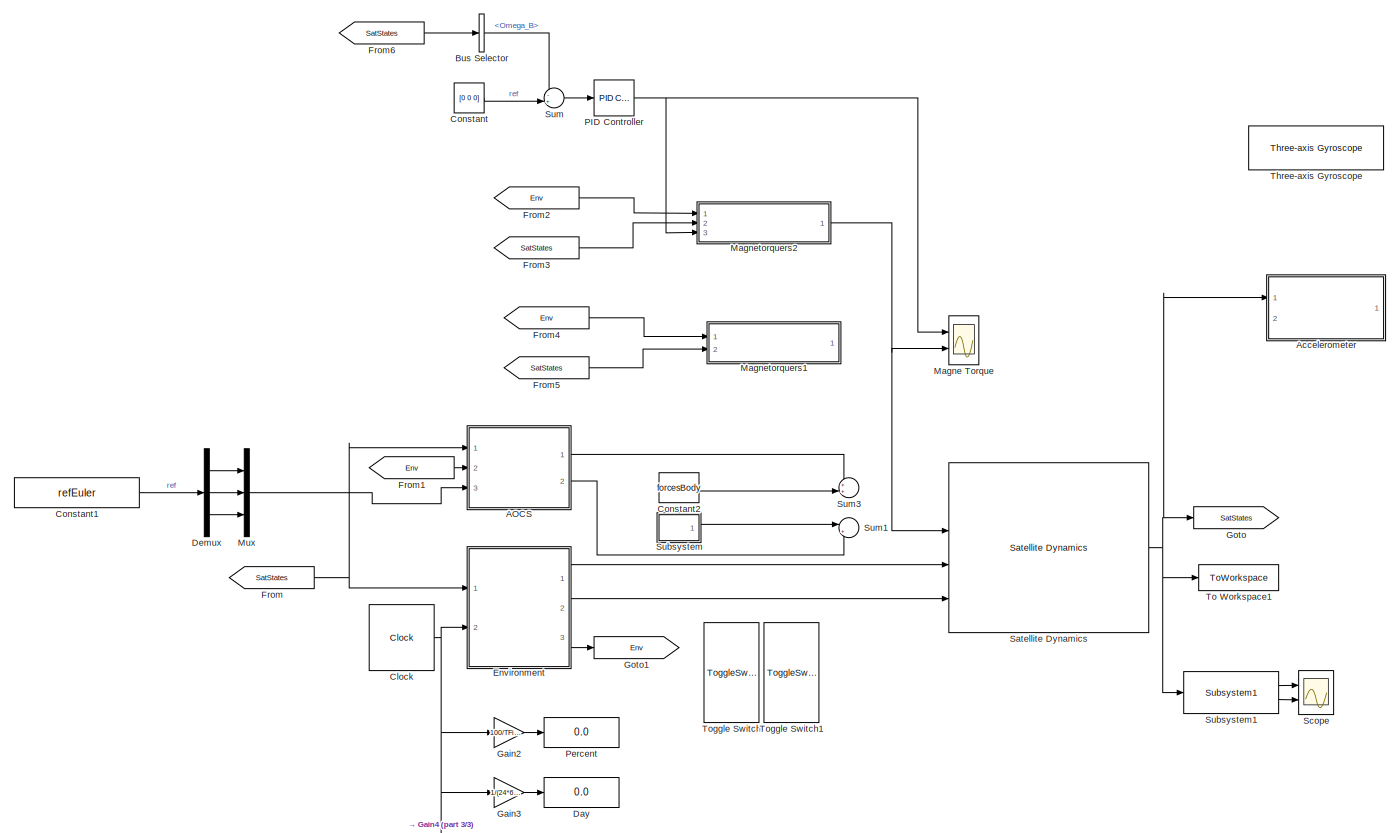
[diagram: root canvas - part 1/3, most of the canvas]
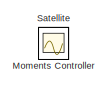
[diagram: root canvas - part 2/3, middle left region]
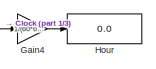
[diagram: root canvas - part 3/3, bottom center region]
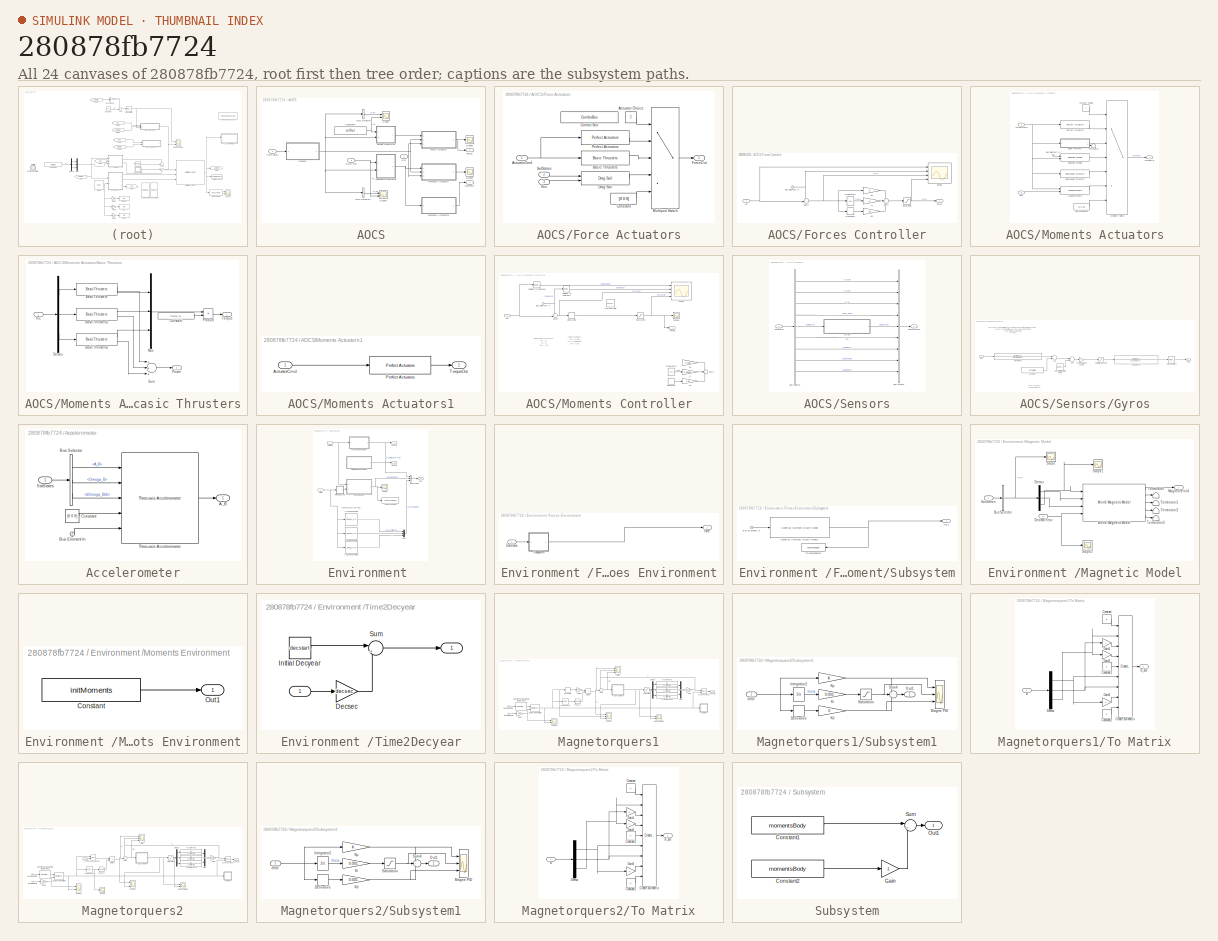
[diagram: thumbnail index - all 24 canvases of the model, root first then tree order]
MODEL slx_280878fb7724
KIND model
CONFIG AbsTol = auto
CONFIG EnableMultiTasking = off
CONFIG FixedStep = 0.1
CONFIG MaxStep = 1
CONFIG MinStep = dT
CONFIG RelTol = 1e-3
CONFIG SampleTimeConstraint = Unconstrained
CONFIG Solver = ode14x
CONFIG SolverName = ode14x
CONFIG StartTime = 0.0
CONFIG StopTime = 2000
WORKSPACE source: mxarray member
WORKSPACE actuators = 0
BLOCK [SubSystem] AOCS
  Commented = on
  Ports = [3, 2]
  RequestExecContextInheritance = off
BLOCK [BusSelector] AOCS/Bus Selector
  Commented = on
  OutputAsBus = off
  OutputSignals = V_B
  Ports = [1, 1]
BLOCK [BusSelector] AOCS/Bus Selector1
  OutputAsBus = off
  OutputSignals = V_B
  Ports = [1, 1]
BLOCK [Constant] AOCS/Constant4
  Commented = on
  Value = refVel
BLOCK [Inport] AOCS/Env
  IconDisplay = Port number
  Port = 2
BLOCK [Inport] AOCS/Euler Ref
  IconDisplay = Port number
  Port = 3
BLOCK [SubSystem] AOCS/Force Actuators
  Commented = on
  Ports = [3, 1]
  RequestExecContextInheritance = off
BLOCK [Constant] AOCS/Force Actuators/Actuator Choice
  Value = 2
BLOCK [Inport] AOCS/Force Actuators/ActuatorCmd
  IconDisplay = Port number
BLOCK [Reference] AOCS/Force Actuators/Basic Thrusters  REF=scars_library/Actuators/Basic Thrusters  (lib defined in slx_0992aaab4a30)
  Ports = [1, 2]
  SourceBlock = scars_library/Actuators/Basic Thrusters
BLOCK [ComboBox] AOCS/Force Actuators/Combo Box
  LabelPosition = Hide
  SelectedLabel = Thrusters
BLOCK [Constant] AOCS/Force Actuators/Constant
  Value = [0 0 0]
BLOCK [Reference] AOCS/Force Actuators/Drag Sail  REF=scars_library/Actuators/Drag Sail  (lib defined in slx_0992aaab4a30)
  Commented = on
  Ports = [2, 1]
  SourceBlock = scars_library/Actuators/Drag Sail
  SourceType = SubSystem
BLOCK [Inport] AOCS/Force Actuators/Env
  IconDisplay = Port number
  Port = 3
BLOCK [Outport] AOCS/Force Actuators/ForceOut
  IconDisplay = Port number
BLOCK [MultiPortSwitch] AOCS/Force Actuators/Multiport Switch
  DiagnosticForDefault = Warning
  InputSameDT = off
  Inputs = 4
  Ports = [5, 1]
  SaturateOnIntegerOverflow = off
BLOCK [Reference] AOCS/Force Actuators/Perfect Actuators  REF=scars_library/Actuators/Perfect Actuators  (lib defined in slx_0992aaab4a30)
  Ports = [1, 1]
  SourceBlock = scars_library/Actuators/Perfect Actuators
BLOCK [Inport] AOCS/Force Actuators/SatStates
  IconDisplay = Port number
  Port = 2
BLOCK [Outport] AOCS/Forces
  IconDisplay = Port number
BLOCK [SubSystem] AOCS/Forces Controller
  Commented = on
  Ports = [2, 1]
  RequestExecContextInheritance = off
BLOCK [Inport] AOCS/Forces Controller/Bus Element In
  IconDisplay = Port number
  Port = 2
BLOCK [Derivative] AOCS/Forces Controller/Derivative
BLOCK [Outport] AOCS/Forces Controller/Force
  IconDisplay = Port number
BLOCK [Integrator] AOCS/Forces Controller/Integrator2
  Ports = [1, 1]
BLOCK [Gain] AOCS/Forces Controller/Kd
  Gain = -30
  OutDataTypeStr = Inherit: Inherit via internal rule
  ParamDataTypeStr = Inherit: Inherit via internal rule
  SaturateOnIntegerOverflow = off
BLOCK [Gain] AOCS/Forces Controller/Ki
  Gain = 0
  OutDataTypeStr = Inherit: Inherit via internal rule
  ParamDataTypeStr = Inherit: Inherit via internal rule
  SaturateOnIntegerOverflow = off
BLOCK [Gain] AOCS/Forces Controller/Kp
  OutDataTypeStr = Inherit: Inherit via internal rule
  ParamDataTypeStr = Inherit: Inherit via internal rule
  SaturateOnIntegerOverflow = off
BLOCK [Saturate] AOCS/Forces Controller/Saturation
  InputPortMap = u0
  LowerLimit = -3
  Ports = [1, 1]
  UpperLimit = 3
BLOCK [Scope] AOCS/Forces Controller/Scope
  Floating = off
  NumInputPorts = 4
  Ports = [4]
  ScopeSpecificationString = Simulink.scopes.TimeScopeBlockCfg('CurrentConfiguration', extmgr.ConfigurationSet(extmgr.Configuration('Core','General UI',true),extmgr.Configuration('Core','Source UI',true),extmgr.Configuration('Sources','WiredSimulink',true,'DataLoggingVariableName','ScopeData1'),extmgr.Configuration('Visuals','Time Domain',true,'SerializedDisplays',{struct('MinYLimReal','-872.23437','MaxYLimReal','7847.26756',...<+4350ch>
BLOCK [Sum] AOCS/Forces Controller/Sum2
  IconShape = round
  InputSameDT = off
  Inputs = -+|
  OutDataTypeStr = Inherit: Inherit via internal rule
  Ports = [2, 1]
  SaturateOnIntegerOverflow = off
BLOCK [Sum] AOCS/Forces Controller/Sum4
  IconShape = round
  InputSameDT = off
  Inputs = +++
  OutDataTypeStr = Inherit: Inherit via internal rule
  Ports = [3, 1]
  SaturateOnIntegerOverflow = off
BLOCK [Inport] AOCS/Forces Controller/ref
  IconDisplay = Port number
BLOCK [Outport] AOCS/Moments
  IconDisplay = Port number
  Port = 2
BLOCK [SubSystem] AOCS/Moments Actuators
  Commented = on
  Ports = [3, 1]
  RequestExecContextInheritance = off
BLOCK [Constant] AOCS/Moments Actuators/Actuator Choice
BLOCK [Inport] AOCS/Moments Actuators/ActuatorCmd
  IconDisplay = Port number
BLOCK [Reference] AOCS/Moments Actuators/Bang-Bang Thrusters  REF=scars_library/Actuators/Bang-Bang Thrusters  (lib defined in slx_0992aaab4a30)
  Ports = [1, 1]
  SourceBlock = scars_library/Actuators/Bang-Bang Thrusters
  SourceType = SubSystem
BLOCK [SubSystem] AOCS/Moments Actuators/Basic Thrusters
  Ports = [1, 2]
  RequestExecContextInheritance = off
BLOCK [Reference] AOCS/Moments Actuators/Basic Thrusters/Basic Thrusters  REF=scars_library/Actuators/Basic Thrusters  (lib defined in slx_0992aaab4a30)
  Ports = [1, 2]
  SourceBlock = scars_library/Actuators/Basic Thrusters
  SourceType = SubSystem
BLOCK [Reference] AOCS/Moments Actuators/Basic Thrusters/Basic Thrusters1  REF=scars_library/Actuators/Basic Thrusters  (lib defined in slx_0992aaab4a30)
  Ports = [1, 2]
  SourceBlock = scars_library/Actuators/Basic Thrusters
  SourceType = SubSystem
BLOCK [Reference] AOCS/Moments Actuators/Basic Thrusters/Basic Thrusters2  REF=scars_library/Actuators/Basic Thrusters  (lib defined in slx_0992aaab4a30)
  Ports = [1, 2]
  SourceBlock = scars_library/Actuators/Basic Thrusters
  SourceType = SubSystem
BLOCK [Constant] AOCS/Moments Actuators/Basic Thrusters/Constant
  Value = thruster.distance
BLOCK [Demux] AOCS/Moments Actuators/Basic Thrusters/Demux
  DisplayOption = bar
  Outputs = 3
  Ports = [1, 3]
BLOCK [Inport] AOCS/Moments Actuators/Basic Thrusters/In1
  IconDisplay = Port number
BLOCK [Mux] AOCS/Moments Actuators/Basic Thrusters/Mux
  DisplayOption = bar
  Inputs = 3
  Ports = [3, 1]
BLOCK [Outport] AOCS/Moments Actuators/Basic Thrusters/Power
  IconDisplay = Port number
  Port = 2
BLOCK [Product] AOCS/Moments Actuators/Basic Thrusters/Product
  InputSameDT = off
  OutDataTypeStr = Inherit: Inherit via internal rule
  Ports = [2, 1]
  RndMeth = Floor
  SaturateOnIntegerOverflow = off
BLOCK [Sum] AOCS/Moments Actuators/Basic Thrusters/Sum
  InputSameDT = off
  Inputs = +++
  OutDataTypeStr = Inherit: Inherit via internal rule
  Ports = [3, 1]
  SaturateOnIntegerOverflow = off
BLOCK [Outport] AOCS/Moments Actuators/Basic Thrusters/Torque
  IconDisplay = Port number
BLOCK [Inport] AOCS/Moments Actuators/Bus Element In
  IconDisplay = Port number
  Port = 2
BLOCK [Inport] AOCS/Moments Actuators/Env
  IconDisplay = Port number
  Port = 3
BLOCK [Reference] AOCS/Moments Actuators/Magnetorquers  REF=scars_library/Actuators/Magnetorquers  (lib defined in slx_0992aaab4a30)
  Ports = [2, 1]
  SourceBlock = scars_library/Actuators/Magnetorquers
  SourceType = SubSystem
BLOCK [MultiPortSwitch] AOCS/Moments Actuators/Multiport Switch
  DiagnosticForDefault = Warning
  InputSameDT = off
  Inputs = 6
  Ports = [7, 1]
  SaturateOnIntegerOverflow = off
BLOCK [Constant] AOCS/Moments Actuators/No Actuators
  Value = [0 0 0]
BLOCK [Reference] AOCS/Moments Actuators/Perfect Actuators  REF=scars_library/Actuators/Perfect Actuators  (lib defined in slx_0992aaab4a30)
  Ports = [1, 1]
  SourceBlock = scars_library/Actuators/Perfect Actuators
  SourceType = SubSystem
BLOCK [Reference] AOCS/Moments Actuators/Reaction Wheels  REF=scars_library/Actuators/Reaction Wheels  (lib defined in slx_0992aaab4a30)
  Ports = [2, 1]
  SourceBlock = scars_library/Actuators/Reaction Wheels
  SourceType = SubSystem
BLOCK [Terminator] AOCS/Moments Actuators/Terminator
BLOCK [Outport] AOCS/Moments Actuators/TorqueOut
  IconDisplay = Port number
BLOCK [SubSystem] AOCS/Moments Actuators1
  Ports = [1, 1]
  RequestExecContextInheritance = off
BLOCK [Inport] AOCS/Moments Actuators1/ActuatorCmd
  IconDisplay = Port number
BLOCK [Reference] AOCS/Moments Actuators1/Perfect Actuators  REF=scars_library/Actuators/Perfect Actuators  (lib defined in slx_0992aaab4a30)
  Ports = [1, 1]
  SourceBlock = scars_library/Actuators/Perfect Actuators
BLOCK [Outport] AOCS/Moments Actuators1/TorqueOut
  IconDisplay = Port number
BLOCK [SubSystem] AOCS/Moments Controller
  Ports = [2, 1]
  RequestExecContextInheritance = off
BLOCK [Inport] AOCS/Moments Controller/Bus Element In
  IconDisplay = Port number
  Port = 2
BLOCK [DeadZone] AOCS/Moments Controller/Dead Zone
  LowerValue = -1e-3
  UpperValue = 1e-3
BLOCK [Derivative] AOCS/Moments Controller/Derivative
  Commented = on
BLOCK [Integrator] AOCS/Moments Controller/Integrator2
  Commented = on
  Ports = [1, 1]
BLOCK [Gain] AOCS/Moments Controller/Kd
  Commented = on
  Gain = 0.05
  OutDataTypeStr = Inherit: Inherit via internal rule
  ParamDataTypeStr = Inherit: Inherit via internal rule
  SaturateOnIntegerOverflow = off
BLOCK [Gain] AOCS/Moments Controller/Ki
  Commented = on
  Gain = 0.00000001
  OutDataTypeStr = Inherit: Inherit via internal rule
  ParamDataTypeStr = Inherit: Inherit via internal rule
  SaturateOnIntegerOverflow = off
BLOCK [Gain] AOCS/Moments Controller/Kp
  Commented = on
  Gain = 0.005
  OutDataTypeStr = Inherit: Inherit via internal rule
  ParamDataTypeStr = Inherit: Inherit via internal rule
  SaturateOnIntegerOverflow = off
BLOCK [Reference] AOCS/Moments Controller/PID Controller  REF=simulink/Continuous/PID Controller
  Commented = on
  Ports = [1, 1]
  SourceBlock = simulink/Continuous/PID Controller
  SourceProductBaseCode = SL
  SourceProductName = Simulink
  SourceType = PID 1dof
BLOCK [Reference] AOCS/Moments Controller/Radians to Degrees  REF=simulink_extras/Transformations/Radians
to Degrees
  Ports = [1, 1]
  SourceBlock = simulink_extras/Transformations/Radians\nto Degrees
  SourceProductBaseCode = SL
  SourceProductName = Simulink
  SourceType = RadiansToDegrees
BLOCK [Reference] AOCS/Moments Controller/Radians to Degrees1  REF=simulink_extras/Transformations/Radians
to Degrees
  Ports = [1, 1]
  SourceBlock = simulink_extras/Transformations/Radians\nto Degrees
  SourceProductBaseCode = SL
  SourceProductName = Simulink
  SourceType = RadiansToDegrees
BLOCK [Saturate] AOCS/Moments Controller/Saturation
  InputPortMap = u0
  LowerLimit = -3
  Ports = [1, 1]
  UpperLimit = 3
BLOCK [Scope] AOCS/Moments Controller/Scope
  Floating = off
  NumInputPorts = 4
  Ports = [4]
  ScopeSpecificationString = Simulink.scopes.TimeScopeBlockCfg('CurrentConfiguration', extmgr.ConfigurationSet(extmgr.Configuration('Core','General UI',true),extmgr.Configuration('Core','Source UI',true),extmgr.Configuration('Sources','WiredSimulink',true,'DataLoggingVariableName','ScopeData1'),extmgr.Configuration('Visuals','Time Domain',true,'SerializedDisplays',{struct('MinYLimReal','-3.75','MaxYLimReal','33.75','YLabelRea...<+4751ch>
BLOCK [Scope] AOCS/Moments Controller/Scope1
  Floating = off
  NumInputPorts = 1
  Ports = [1]
  ScopeSpecificationString = Simulink.scopes.TimeScopeBlockCfg('CurrentConfiguration', extmgr.ConfigurationSet(extmgr.Configuration('Core','General UI',true),extmgr.Configuration('Core','Source UI',true),extmgr.Configuration('Sources','WiredSimulink',true,'DataLoggingVariableName','ScopeData1'),extmgr.Configuration('Visuals','Time Domain',true,'SerializedDisplays',{struct('MinYLimReal','-0.00042','MaxYLimReal','0.00063','YLab...<+1455ch>
BLOCK [Sum] AOCS/Moments Controller/Sum2
  IconShape = round
  InputSameDT = off
  Inputs = -+|
  OutDataTypeStr = Inherit: Inherit via internal rule
  Ports = [2, 1]
  SaturateOnIntegerOverflow = off
BLOCK [Sum] AOCS/Moments Controller/Sum4
  Commented = on
  IconShape = round
  InputSameDT = off
  Inputs = +++
  OutDataTypeStr = Inherit: Inherit via internal rule
  Ports = [3, 1]
  SaturateOnIntegerOverflow = off
BLOCK [Outport] AOCS/Moments Controller/Torque
  IconDisplay = Port number
BLOCK [Inport] AOCS/Moments Controller/ref
  IconDisplay = Port number
BLOCK [Inport] AOCS/SatStates
  IconDisplay = Port number
BLOCK [Scope] AOCS/Scope
  Commented = on
  Floating = off
  NumInputPorts = 2
  Ports = [2]
  ScopeSpecificationString = Simulink.scopes.TimeScopeBlockCfg('CurrentConfiguration', extmgr.ConfigurationSet(extmgr.Configuration('Core','General UI',true),extmgr.Configuration('Core','Source UI',true),extmgr.Configuration('Sources','WiredSimulink',true,'DataLoggingVariableName','ScopeData1'),extmgr.Configuration('Visuals','Time Domain',true,'SerializedDisplays',{struct('MinYLimReal','-809.73694','MaxYLimReal','7284.79065',...<+2120ch>
BLOCK [Scope] AOCS/Scope1
  Floating = off
  NumInputPorts = 2
  Ports = [2]
  ScopeSpecificationString = Simulink.scopes.TimeScopeBlockCfg('CurrentConfiguration', extmgr.ConfigurationSet(extmgr.Configuration('Core','General UI',true),extmgr.Configuration('Core','Source UI',true),extmgr.Configuration('Sources','WiredSimulink',true,'DataLoggingVariableName','ScopeData2'),extmgr.Configuration('Visuals','Time Domain',true,'SerializedDisplays',{struct('MinYLimReal','-0.12359','MaxYLimReal','0.32482','YLab...<+2223ch>
BLOCK [Scope] AOCS/Scope2
  Commented = on
  Floating = off
  NumInputPorts = 1
  Ports = [1]
  ScopeSpecificationString = Simulink.scopes.TimeScopeBlockCfg('CurrentConfiguration', extmgr.ConfigurationSet(extmgr.Configuration('Core','General UI',true),extmgr.Configuration('Core','Source UI',true),extmgr.Configuration('Sources','WiredSimulink',true,'DataLoggingVariableName','ScopeData3'),extmgr.Configuration('Visuals','Time Domain',true),extmgr.Configuration('Tools','Plot Navigation',true),extmgr.Configuration('Tools',...<+40ch>
BLOCK [Scope] AOCS/Scope3
  Floating = off
  NumInputPorts = 1
  Ports = [1]
  ScopeSpecificationString = Simulink.scopes.TimeScopeBlockCfg('CurrentConfiguration', extmgr.ConfigurationSet(extmgr.Configuration('Core','General UI',true),extmgr.Configuration('Core','Source UI',true),extmgr.Configuration('Sources','WiredSimulink',true,'DataLoggingVariableName','ScopeData4'),extmgr.Configuration('Visuals','Time Domain',true,'SerializedDisplays',{struct('MinYLimReal','-0.00042','MaxYLimReal','0.00063','YLab...<+1449ch>
BLOCK [SubSystem] AOCS/Sensors
  Ports = [1, 1]
  RequestExecContextInheritance = off
BLOCK [BusCreator] AOCS/Sensors/Bus Creator
  DisplayOption = bar
  InheritFromInputs = on
  Inputs = 9
  Ports = [9, 1]
BLOCK [BusSelector] AOCS/Sensors/Bus Selector
  OutputAsBus = off
  OutputSignals = V_ecef,X_ecef,V_B,Euler_NED,Omega_B,lla,ECI2Body,ECEF2NED,NED2Body
  Ports = [1, 9]
BLOCK [SubSystem] AOCS/Sensors/Gyros
  Commented = through
  Ports = [1, 1]
  RequestExecContextInheritance = off
BLOCK [Sum] AOCS/Sensors/Gyros/Add
  InputSameDT = off
  OutDataTypeStr = Inherit: Inherit via internal rule
  Ports = [2, 1]
  SaturateOnIntegerOverflow = off
BLOCK [Sum] AOCS/Sensors/Gyros/Add1
  InputSameDT = off
  OutDataTypeStr = Inherit: Inherit via internal rule
  Ports = [2, 1]
  SaturateOnIntegerOverflow = off
BLOCK [Reference] AOCS/Sensors/Gyros/Band-Limited White Noise  REF=simulink/Sources/Band-Limited
White Noise
  Ports = [0, 1]
  SourceBlock = simulink/Sources/Band-Limited\nWhite Noise
  SourceProductBaseCode = SL
  SourceProductName = Simulink
  SourceType = Band-Limited White Noise.
BLOCK [Constant] AOCS/Sensors/Gyros/Constant
  Value = gyro.bias
BLOCK [Inport] AOCS/Sensors/Gyros/In1
  IconDisplay = Port number
BLOCK [Outport] AOCS/Sensors/Gyros/Out1
  IconDisplay = Port number
BLOCK [RateTransition] AOCS/Sensors/Gyros/Rate Transition1
  OutPortSampleTime = gyro.rate
BLOCK [TransferFcn] AOCS/Sensors/Gyros/Transfer Fcn
  Denominator = [1 2*gyro.zeta*gyro.wn gyro.wn^2]
  Numerator = [gyro.wn^2]
BLOCK [TransferFcn] AOCS/Sensors/Gyros/Transfer Fcn1
  Denominator = [1 2*gyro.z*gyro.w gyro.w^2]
  Numerator = [gyro.w^2]
BLOCK [Saturate] AOCS/Sensors/Gyros/saturation of counts
  InputPortMap = u0
  LowerLimit = gyro.min
  Ports = [1, 1]
  UpperLimit = gyro.max
BLOCK [Gain] AOCS/Sensors/Gyros/scale factor dps 2 counts
  OutDataTypeStr = Inherit: Inherit via internal rule
  ParamDataTypeStr = Inherit: Inherit via internal rule
  SaturateOnIntegerOverflow = off
BLOCK [Inport] AOCS/Sensors/SatStates
  IconDisplay = Port number
BLOCK [Outport] AOCS/Sensors/SensorStates
  IconDisplay = Port number
BLOCK [SubSystem] Accelerometer
  Ports = [2, 1]
  RequestExecContextInheritance = off
BLOCK [Outport] Accelerometer/A_B
  IconDisplay = Port number
BLOCK [Inport] Accelerometer/Bus Element In
  IconDisplay = Port number
  Port = 2
BLOCK [BusSelector] Accelerometer/Bus Selector
  OutputAsBus = off
  OutputSignals = A_B,Omega_B,dOmega_B/dt
  Ports = [1, 3]
BLOCK [Constant] Accelerometer/Constant
  Value = [0 0 0]
BLOCK [Inport] Accelerometer/SatStates
  IconDisplay = Port number
BLOCK [Reference] Accelerometer/Three-axis Accelerometer  REF=aerolibnav/Three-axis Accelerometer
  Ports = [5, 1]
  SourceBlock = aerolibnav/Three-axis Accelerometer
  SourceProductBaseCode = AE
  SourceProductName = Aerospace Blockset
  SourceType = Three-axis Accelerometer
BLOCK [BusSelector] Bus Selector
  OutputAsBus = off
  OutputSignals = Omega_B
  Ports = [1, 1]
BLOCK [Clock] Clock
  DisplayTime = on
BLOCK [Constant] Constant
  Value = [0 0 0]
BLOCK [Constant] Constant1
  Commented = on
  Value = refEuler
BLOCK [Constant] Constant2
  Commented = on
  Value = forcesBody
BLOCK [Display] Day
  Decimation = 1
  Ports = [1]
BLOCK [Demux] Demux
  Commented = on
  DisplayOption = bar
  Outputs = 3
  Ports = [1, 3]
BLOCK [SubSystem] Environment 
  Ports = [2, 3]
  RequestExecContextInheritance = off
BLOCK [Lookup_n-D] Environment /1-D Lookup Table
  BreakpointsForDimension1 = sun_position(:,1)
  InternalRulePriority = Speed
  NumberOfTableDimensions = 1
  Ports = [1, 1]
  RndMeth = Simplest
  Table = sun_position(:,2)
BLOCK [Lookup_n-D] Environment /1-D Lookup Table1
  BreakpointsForDimension1 = sun_position(:,1)
  InternalRulePriority = Speed
  NumberOfTableDimensions = 1
  Ports = [1, 1]
  RndMeth = Simplest
  Table = sun_position(:,3)
BLOCK [Lookup_n-D] Environment /1-D Lookup Table2
  BreakpointsForDimension1 = sun_position(:,1)
  InternalRulePriority = Speed
  NumberOfTableDimensions = 1
  Ports = [1, 1]
  RndMeth = Simplest
  Table = sun_position(:,4)
BLOCK [BusCreator] Environment /Bus Creator
  DisplayOption = bar
  InheritFromInputs = on
  Inputs = 3
  Ports = [3, 1]
BLOCK [Outport] Environment /Env
  IconDisplay = Port number
  Port = 3
BLOCK [Outport] Environment /Forces
  IconDisplay = Port number
BLOCK [SubSystem] Environment /Forces Environment
  Ports = [1, 1]
  RequestExecContextInheritance = off
BLOCK [Inport] Environment /Forces Environment/SatStates
  IconDisplay = Port number
BLOCK [SubSystem] Environment /Forces Environment/Subsystem
  Ports = [1, 1]
  RequestExecContextInheritance = off
BLOCK [Inport] Environment /Forces Environment/Subsystem/Bus Element In
  IconDisplay = Port number
BLOCK [Outport] Environment /Forces Environment/Subsystem/Out1
  IconDisplay = Port number
BLOCK [Reference] Environment /Forces Environment/Subsystem/Spherical Harmonic Gravity Model1  REF=aerolibgravity2/Spherical Harmonic Gravity Model
  Ports = [1, 1]
  SourceBlock = aerolibgravity2/Spherical Harmonic Gravity Model
  SourceProductBaseCode = AE
  SourceProductName = Aerospace Blockset
  SourceType = Spherical Harmonic Gravity Model
BLOCK [ToWorkspace] Environment /Forces Environment/Subsystem/To Workspace13
  FixptAsFi = on
  MaxDataPoints = inf
  Ports = [1]
  SampleTime = -1
  VariableName = g
BLOCK [Outport] Environment /Forces Environment/force
  IconDisplay = Port number
BLOCK [SubSystem] Environment /Magnetic Model
  Ports = [2, 1]
  RequestExecContextInheritance = off
BLOCK [BusSelector] Environment /Magnetic Model/Bus Selector
  OutputAsBus = off
  OutputSignals = lla
  Ports = [1, 1]
BLOCK [Inport] Environment /Magnetic Model/DecimalYear
  IconDisplay = Port number
  Port = 2
BLOCK [Demux] Environment /Magnetic Model/Demux
  DisplayOption = bar
  Outputs = 3
  Ports = [1, 3]
BLOCK [Outport] Environment /Magnetic Model/MagneticField
  IconDisplay = Port number
BLOCK [Inport] Environment /Magnetic Model/SatStates
  IconDisplay = Port number
BLOCK [Scope] Environment /Magnetic Model/Scope
  Floating = off
  NumInputPorts = 1
  Ports = [1]
  ScopeSpecificationString = Simulink.scopes.TimeScopeBlockCfg('CurrentConfiguration', extmgr.ConfigurationSet(extmgr.Configuration('Core','General UI',true),extmgr.Configuration('Core','Source UI',true),extmgr.Configuration('Sources','WiredSimulink',true,'DataLoggingVariableName','ScopeData2'),extmgr.Configuration('Visuals','Time Domain',true,'SerializedDisplays',{struct('MinYLimReal','-103953.3575','MaxYLimReal','933822.683...<+1559ch>
BLOCK [Scope] Environment /Magnetic Model/Scope1
  Floating = off
  NumInputPorts = 1
  Ports = [1]
  ScopeSpecificationString = Simulink.scopes.TimeScopeBlockCfg('CurrentConfiguration', extmgr.ConfigurationSet(extmgr.Configuration('Core','General UI',true),extmgr.Configuration('Core','Source UI',true),extmgr.Configuration('Sources','WiredSimulink',true,'DataLoggingVariableName','ScopeData3'),extmgr.Configuration('Visuals','Time Domain',true,'SerializedDisplays',{struct('MinYLimReal','676611.33077','MaxYLimReal','1017332.13...<+1479ch>
BLOCK [Scope] Environment /Magnetic Model/Scope2
  Floating = off
  NumInputPorts = 1
  Ports = [1]
  ScopeSpecificationString = Simulink.scopes.TimeScopeBlockCfg('CurrentConfiguration', extmgr.ConfigurationSet(extmgr.Configuration('Core','General UI',true),extmgr.Configuration('Core','Source UI',true),extmgr.Configuration('Sources','WiredSimulink',true,'DataLoggingVariableName','ScopeData4'),extmgr.Configuration('Visuals','Time Domain',true,'SerializedDisplays',{struct('MinYLimReal','2000.0013657','MaxYLimReal','2000.00136...<+1495ch>
BLOCK [Terminator] Environment /Magnetic Model/Terminator
BLOCK [Terminator] Environment /Magnetic Model/Terminator1
BLOCK [Terminator] Environment /Magnetic Model/Terminator2
BLOCK [Terminator] Environment /Magnetic Model/Terminator3
BLOCK [Reference] Environment /Magnetic Model/World Magnetic Model  REF=aerolibgravity2/World Magnetic Model
  AttributesFormatString = %<model>
  Ports = [4, 5]
  SourceBlock = aerolibgravity2/World Magnetic Model
  SourceProductBaseCode = AE
  SourceProductName = Aerospace Blockset
  SourceType = WorldMagneticModel
BLOCK [Outport] Environment /Moments
  IconDisplay = Port number
  Port = 2
BLOCK [SubSystem] Environment /Moments Environment
  Ports = [0, 1]
  RequestExecContextInheritance = off
BLOCK [Constant] Environment /Moments Environment/Constant
  Value = initMoments
BLOCK [Outport] Environment /Moments Environment/Out1
  IconDisplay = Port number
BLOCK [Mux] Environment /Mux
  DisplayOption = bar
  Inputs = 3
  Ports = [3, 1]
BLOCK [Inport] Environment /SatStates
  IconDisplay = Port number
BLOCK [Scope] Environment /Scope
  Floating = off
  NumInputPorts = 1
  Ports = [1]
  ScopeSpecificationString = Simulink.scopes.TimeScopeBlockCfg('CurrentConfiguration', extmgr.ConfigurationSet(extmgr.Configuration('Core','General UI',true),extmgr.Configuration('Core','Source UI',true),extmgr.Configuration('Sources','WiredSimulink',true,'DataLoggingVariableName','ScopeData1'),extmgr.Configuration('Visuals','Time Domain',true,'SerializedDisplays',{struct('MinYLimReal','-12986.75199','MaxYLimReal','30715.3785...<+1440ch>
BLOCK [Inport] Environment /Time
  IconDisplay = Port number
  Port = 2
BLOCK [SubSystem] Environment /Time2Decyear
  Ports = [1, 1]
  RequestExecContextInheritance = off
BLOCK [Inport] Environment /Time2Decyear/ 
  IconDisplay = Port number
BLOCK [Outport] Environment /Time2Decyear/  
  IconDisplay = Port number
BLOCK [Gain] Environment /Time2Decyear/Decsec
  Gain = decsec
  OutDataTypeStr = Inherit: Inherit via internal rule
  ParamDataTypeStr = Inherit: Inherit via internal rule
  SaturateOnIntegerOverflow = off
BLOCK [Constant] Environment /Time2Decyear/Initial Decyear
  Value = decstart
BLOCK [Sum] Environment /Time2Decyear/Sum
  IconShape = round
  InputSameDT = off
  Inputs = |++
  OutDataTypeStr = Inherit: Inherit via internal rule
  Ports = [2, 1]
  SaturateOnIntegerOverflow = off
BLOCK [ToWorkspace] Environment /To Workspace
  FixptAsFi = on
  MaxDataPoints = inf
  Ports = [1]
  SampleTime = -1
  VariableName = mag
BLOCK [From] From
  GotoTag = SatStates
BLOCK [From] From1
  Commented = on
  GotoTag = Env
BLOCK [From] From2
  GotoTag = Env
BLOCK [From] From3
  GotoTag = SatStates
BLOCK [From] From4
  GotoTag = Env
BLOCK [From] From5
  GotoTag = SatStates
BLOCK [From] From6
  GotoTag = SatStates
BLOCK [Gain] Gain2
  Gain = 100/TFinal
  OutDataTypeStr = Inherit: Inherit via internal rule
  ParamDataTypeStr = Inherit: Inherit via internal rule
  SaturateOnIntegerOverflow = off
BLOCK [Gain] Gain3
  Gain = 1/(24*60*60)
  OutDataTypeStr = Inherit: Inherit via internal rule
  ParamDataTypeStr = Inherit: Inherit via internal rule
  SaturateOnIntegerOverflow = off
BLOCK [Gain] Gain4
  Gain = 1/(60*60)
  OutDataTypeStr = Inherit: Inherit via internal rule
  ParamDataTypeStr = Inherit: Inherit via internal rule
  SaturateOnIntegerOverflow = off
BLOCK [Goto] Goto
  GotoTag = SatStates
BLOCK [Goto] Goto1
  GotoTag = Env
BLOCK [Display] Hour
  Decimation = 1
  Ports = [1]
BLOCK [Scope] Magne Torque
  Floating = off
  NumInputPorts = 2
  Ports = [2]
  ScopeSpecificationString = Simulink.scopes.TimeScopeBlockCfg('CurrentConfiguration', extmgr.ConfigurationSet(extmgr.Configuration('Core','General UI',true),extmgr.Configuration('Core','Source UI',true),extmgr.Configuration('Sources','WiredSimulink',true,'DataLoggingVariableName','ScopeData1'),extmgr.Configuration('Visuals','Time Domain',true,'SerializedDisplays',{struct('MinYLimReal','-0.00041','MaxYLimReal','-0.00008','YLa...<+2114ch>
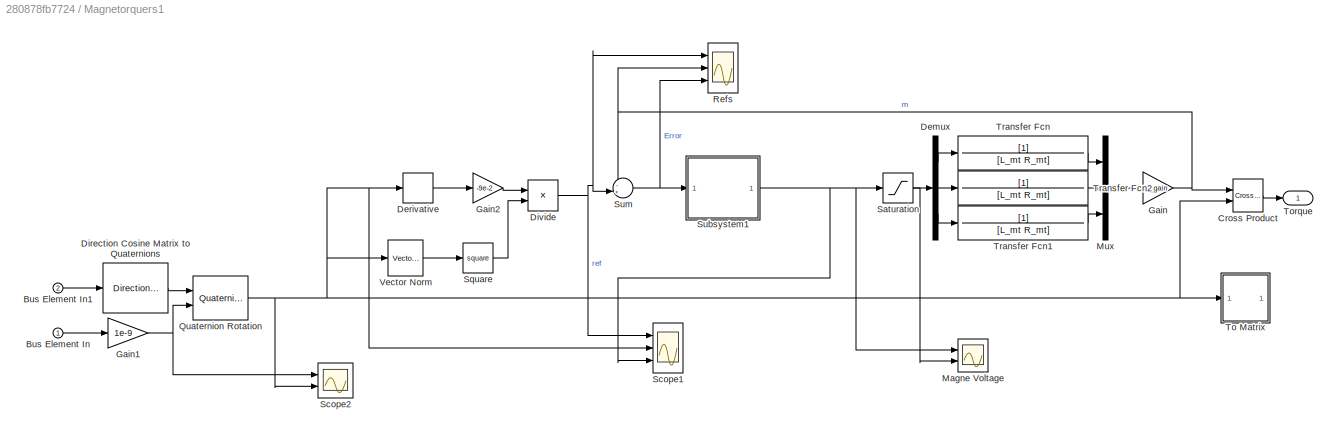
BLOCK [SubSystem] Magnetorquers1
  Ports = [2, 1]
  RequestExecContextInheritance = off
BLOCK [Inport] Magnetorquers1/Bus Element In
  IconDisplay = Port number
BLOCK [Inport] Magnetorquers1/Bus Element In1
  IconDisplay = Port number
  Port = 2
BLOCK [Reference] Magnetorquers1/Cross Product  REF=vrlib/Utilities/Cross Product
  Ports = [2, 1]
  SourceBlock = vrlib/Utilities/Cross Product
  SourceProductBaseCode = SL
  SourceProductName = Simulink
  SourceType = Cross Product
BLOCK [Demux] Magnetorquers1/Demux
  DisplayOption = bar
  Outputs = 3
  Ports = [1, 3]
BLOCK [Derivative] Magnetorquers1/Derivative
BLOCK [Reference] Magnetorquers1/Direction Cosine Matrix to Quaternions  REF=sharedtransform/Direction Cosine Matrix 
to Quaternions
  Ports = [1, 1]
  SourceBlock = sharedtransform/Direction Cosine Matrix \nto Quaternions
  SourceProductBaseCode = AE
  SourceProductName = Aerospace Blockset
  SourceType = DCM2Quaternion
BLOCK [Product] Magnetorquers1/Divide
  InputSameDT = off
  Inputs = */
  OutDataTypeStr = Inherit: Inherit via internal rule
  Ports = [2, 1]
  RndMeth = Floor
  SaturateOnIntegerOverflow = off
BLOCK [Gain] Magnetorquers1/Gain
  Gain = mt_gain
  OutDataTypeStr = Inherit: Inherit via internal rule
  ParamDataTypeStr = Inherit: Inherit via internal rule
  SaturateOnIntegerOverflow = off
BLOCK [Gain] Magnetorquers1/Gain1
  Gain = 1e-9
  OutDataTypeStr = Inherit: Inherit via internal rule
  ParamDataTypeStr = Inherit: Inherit via internal rule
  SaturateOnIntegerOverflow = off
BLOCK [Gain] Magnetorquers1/Gain2
  Gain = -9e-2
  OutDataTypeStr = Inherit: Inherit via internal rule
  ParamDataTypeStr = Inherit: Inherit via internal rule
  SaturateOnIntegerOverflow = off
BLOCK [Scope] Magnetorquers1/Magne Voltage
  Floating = off
  NumInputPorts = 2
  Ports = [2]
  ScopeSpecificationString = Simulink.scopes.TimeScopeBlockCfg('CurrentConfiguration', extmgr.ConfigurationSet(extmgr.Configuration('Core','General UI',true),extmgr.Configuration('Core','Source UI',true),extmgr.Configuration('Sources','WiredSimulink',true,'DataLoggingVariableName','ScopeData2'),extmgr.Configuration('Visuals','Time Domain',true,'SerializedDisplays',{struct('MinYLimReal','-117.66681','MaxYLimReal','23.42717','Y...<+2175ch>
BLOCK [Mux] Magnetorquers1/Mux
  DisplayOption = bar
  Inputs = 3
  Ports = [3, 1]
BLOCK [Reference] Magnetorquers1/Quaternion Rotation  REF=aerolibutil/Quaternion
Rotation
  Ports = [2, 1]
  SourceBlock = aerolibutil/Quaternion\nRotation
  SourceProductBaseCode = AE
  SourceProductName = Aerospace Blockset
  SourceType = Quaternion Rotation
BLOCK [Scope] Magnetorquers1/Refs
  Floating = off
  NumInputPorts = 3
  Ports = [3]
  ScopeSpecificationString = Simulink.scopes.TimeScopeBlockCfg('CurrentConfiguration', extmgr.ConfigurationSet(extmgr.Configuration('Core','General UI',true),extmgr.Configuration('Core','Source UI',true),extmgr.Configuration('Sources','WiredSimulink',true,'DataLoggingVariableName','ScopeData1'),extmgr.Configuration('Visuals','Time Domain',true,'SerializedDisplays',{struct('MinYLimReal','-81.53381','MaxYLimReal','56.30581','YL...<+2791ch>
BLOCK [Saturate] Magnetorquers1/Saturation
  InputPortMap = u0
  LowerLimit = -mag_sat
  Ports = [1, 1]
  UpperLimit = mag_sat
BLOCK [Scope] Magnetorquers1/Scope1
  Floating = off
  NumInputPorts = 3
  Ports = [3]
  ScopeSpecificationString = Simulink.scopes.TimeScopeBlockCfg('CurrentConfiguration', extmgr.ConfigurationSet(extmgr.Configuration('Core','General UI',true),extmgr.Configuration('Core','Source UI',true),extmgr.Configuration('Sources','WiredSimulink',true,'DataLoggingVariableName','ScopeData3'),extmgr.Configuration('Visuals','Time Domain',true,'SerializedDisplays',{struct('MinYLimReal','-29.30989','MaxYLimReal','27.53407','YL...<+2890ch>
BLOCK [Scope] Magnetorquers1/Scope2
  Floating = off
  NumInputPorts = 2
  Ports = [2]
  ScopeSpecificationString = Simulink.scopes.TimeScopeBlockCfg('CurrentConfiguration', extmgr.ConfigurationSet(extmgr.Configuration('Core','General UI',true),extmgr.Configuration('Core','Source UI',true),extmgr.Configuration('Sources','WiredSimulink',true,'DataLoggingVariableName','ScopeData1'),extmgr.Configuration('Visuals','Time Domain',true,'SerializedDisplays',{struct('MinYLimReal','-0.000022','MaxYLimReal','0.000043','YL...<+1495ch>
BLOCK [Math] Magnetorquers1/Square
  Operator = square
  Ports = [1, 1]
  SignedPower = off
BLOCK [SubSystem] Magnetorquers1/Subsystem1
  Ports = [1, 1]
  RequestExecContextInheritance = off
BLOCK [Derivative] Magnetorquers1/Subsystem1/Derivative
BLOCK [Integrator] Magnetorquers1/Subsystem1/Integrator2
  Ports = [1, 1]
BLOCK [Gain] Magnetorquers1/Subsystem1/Kd
  Gain = 0
  OutDataTypeStr = Inherit: Inherit via internal rule
  ParamDataTypeStr = Inherit: Inherit via internal rule
  SaturateOnIntegerOverflow = off
BLOCK [Gain] Magnetorquers1/Subsystem1/Ki
  Gain = 0.001
  OutDataTypeStr = Inherit: Inherit via internal rule
  ParamDataTypeStr = Inherit: Inherit via internal rule
  SaturateOnIntegerOverflow = off
BLOCK [Gain] Magnetorquers1/Subsystem1/Kp
  OutDataTypeStr = Inherit: Inherit via internal rule
  ParamDataTypeStr = Inherit: Inherit via internal rule
  SaturateOnIntegerOverflow = off
BLOCK [Scope] Magnetorquers1/Subsystem1/Magne PID
  Floating = off
  NumInputPorts = 3
  Ports = [3]
  ScopeSpecificationString = Simulink.scopes.TimeScopeBlockCfg('CurrentConfiguration', extmgr.ConfigurationSet(extmgr.Configuration('Core','General UI',true),extmgr.Configuration('Core','Source UI',true),extmgr.Configuration('Sources','WiredSimulink',true,'DataLoggingVariableName','ScopeData4'),extmgr.Configuration('Visuals','Time Domain',true,'SerializedDisplays',{struct('MinYLimReal','-21.28211','MaxYLimReal','11.18774','YL...<+2853ch>
BLOCK [Outport] Magnetorquers1/Subsystem1/Out1
  IconDisplay = Port number
BLOCK [Saturate] Magnetorquers1/Subsystem1/Saturation
  InputPortMap = u0
  LowerLimit = -1
  Ports = [1, 1]
  UpperLimit = 1
BLOCK [Sum] Magnetorquers1/Subsystem1/Sum4
  IconShape = round
  InputSameDT = off
  Inputs = +++
  OutDataTypeStr = Inherit: Inherit via internal rule
  Ports = [3, 1]
  SaturateOnIntegerOverflow = off
BLOCK [Inport] Magnetorquers1/Subsystem1/error
  IconDisplay = Port number
BLOCK [Sum] Magnetorquers1/Sum
  IconShape = round
  InputSameDT = off
  Inputs = -+|
  OutDataTypeStr = Inherit: Inherit via internal rule
  Ports = [2, 1]
  SaturateOnIntegerOverflow = off
BLOCK [SubSystem] Magnetorquers1/To Matrix
  Commented = on
  Ports = [1, 1]
  RequestExecContextInheritance = off
BLOCK [Inport] Magnetorquers1/To Matrix/B
  IconDisplay = Port number
BLOCK [Outport] Magnetorquers1/To Matrix/B_3x3
  IconDisplay = Port number
BLOCK [Constant] Magnetorquers1/To Matrix/Constant
  Value = 0
BLOCK [Constant] Magnetorquers1/To Matrix/Constant1
  Value = 0
BLOCK [Constant] Magnetorquers1/To Matrix/Constant2
  Value = 0
BLOCK [Reference] Magnetorquers1/To Matrix/Create 3x3 Matrix  REF=sharedutil/Create 3x3 Matrix
  Ports = [9, 1]
  SourceBlock = sharedutil/Create 3x3 Matrix
  SourceProductBaseCode = AE
  SourceProductName = Aerospace Blockset
  SourceType = Create 3x3 Matrix
BLOCK [Demux] Magnetorquers1/To Matrix/Demux
  DisplayOption = bar
  Outputs = 3
  Ports = [1, 3]
BLOCK [Gain] Magnetorquers1/To Matrix/Gain1
  Gain = -1
  OutDataTypeStr = Inherit: Inherit via internal rule
  ParamDataTypeStr = Inherit: Inherit via internal rule
  SaturateOnIntegerOverflow = off
BLOCK [Gain] Magnetorquers1/To Matrix/Gain2
  Gain = -1
  OutDataTypeStr = Inherit: Inherit via internal rule
  ParamDataTypeStr = Inherit: Inherit via internal rule
  SaturateOnIntegerOverflow = off
BLOCK [Gain] Magnetorquers1/To Matrix/Gain3
  Gain = -1
  OutDataTypeStr = Inherit: Inherit via internal rule
  ParamDataTypeStr = Inherit: Inherit via internal rule
  SaturateOnIntegerOverflow = off
BLOCK [Outport] Magnetorquers1/Torque
  IconDisplay = Port number
BLOCK [TransferFcn] Magnetorquers1/Transfer Fcn
  Denominator = [L_mt R_mt]
BLOCK [TransferFcn] Magnetorquers1/Transfer Fcn1
  Denominator = [L_mt R_mt]
BLOCK [TransferFcn] Magnetorquers1/Transfer Fcn2
  Denominator = [L_mt R_mt]
BLOCK [Reference] Magnetorquers1/Vector Norm  REF=scars_library/Vector Norm  (lib defined in slx_0992aaab4a30)
  Ports = [1, 1]
  SourceBlock = scars_library/Vector Norm
  SourceType = SubSystem
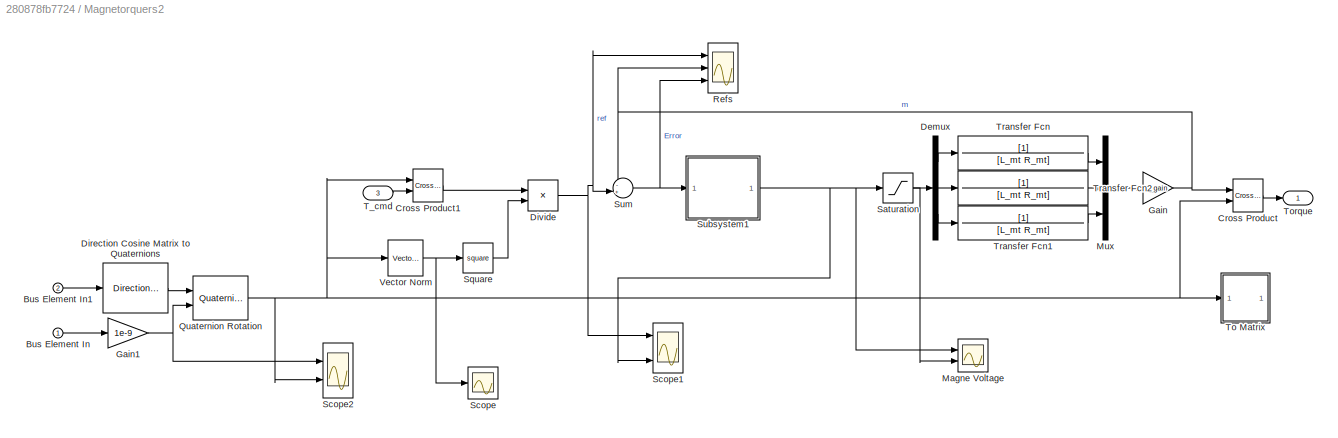
BLOCK [SubSystem] Magnetorquers2
  Ports = [3, 1]
  RequestExecContextInheritance = off
BLOCK [Inport] Magnetorquers2/Bus Element In
  IconDisplay = Port number
BLOCK [Inport] Magnetorquers2/Bus Element In1
  IconDisplay = Port number
  Port = 2
BLOCK [Reference] Magnetorquers2/Cross Product  REF=vrlib/Utilities/Cross Product
  Ports = [2, 1]
  SourceBlock = vrlib/Utilities/Cross Product
  SourceProductBaseCode = SL
  SourceProductName = Simulink
  SourceType = Cross Product
BLOCK [Reference] Magnetorquers2/Cross Product1  REF=vrlib/Utilities/Cross Product
  Ports = [2, 1]
  SourceBlock = vrlib/Utilities/Cross Product
  SourceProductBaseCode = SL
  SourceProductName = Simulink
  SourceType = Cross Product
BLOCK [Demux] Magnetorquers2/Demux
  DisplayOption = bar
  Outputs = 3
  Ports = [1, 3]
BLOCK [Reference] Magnetorquers2/Direction Cosine Matrix to Quaternions  REF=sharedtransform/Direction Cosine Matrix 
to Quaternions
  Ports = [1, 1]
  SourceBlock = sharedtransform/Direction Cosine Matrix \nto Quaternions
  SourceProductBaseCode = AE
  SourceProductName = Aerospace Blockset
  SourceType = DCM2Quaternion
BLOCK [Product] Magnetorquers2/Divide
  InputSameDT = off
  Inputs = */
  OutDataTypeStr = Inherit: Inherit via internal rule
  Ports = [2, 1]
  RndMeth = Floor
  SaturateOnIntegerOverflow = off
BLOCK [Gain] Magnetorquers2/Gain
  Gain = mt_gain
  OutDataTypeStr = Inherit: Inherit via internal rule
  ParamDataTypeStr = Inherit: Inherit via internal rule
  SaturateOnIntegerOverflow = off
BLOCK [Gain] Magnetorquers2/Gain1
  Gain = 1e-9
  OutDataTypeStr = Inherit: Inherit via internal rule
  ParamDataTypeStr = Inherit: Inherit via internal rule
  SaturateOnIntegerOverflow = off
BLOCK [Scope] Magnetorquers2/Magne Voltage
  Floating = off
  NumInputPorts = 2
  Ports = [2]
  ScopeSpecificationString = Simulink.scopes.TimeScopeBlockCfg('CurrentConfiguration', extmgr.ConfigurationSet(extmgr.Configuration('Core','General UI',true),extmgr.Configuration('Core','Source UI',true),extmgr.Configuration('Sources','WiredSimulink',true,'DataLoggingVariableName','ScopeData2'),extmgr.Configuration('Visuals','Time Domain',true,'SerializedDisplays',{struct('MinYLimReal','-1.93902','MaxYLimReal','2.74574','YLab...<+2167ch>
BLOCK [Mux] Magnetorquers2/Mux
  DisplayOption = bar
  Inputs = 3
  Ports = [3, 1]
BLOCK [Reference] Magnetorquers2/Quaternion Rotation  REF=aerolibutil/Quaternion
Rotation
  Ports = [2, 1]
  SourceBlock = aerolibutil/Quaternion\nRotation
  SourceProductBaseCode = AE
  SourceProductName = Aerospace Blockset
  SourceType = Quaternion Rotation
BLOCK [Scope] Magnetorquers2/Refs
  Floating = off
  NumInputPorts = 3
  Ports = [3]
  ScopeSpecificationString = Simulink.scopes.TimeScopeBlockCfg('CurrentConfiguration', extmgr.ConfigurationSet(extmgr.Configuration('Core','General UI',true),extmgr.Configuration('Core','Source UI',true),extmgr.Configuration('Sources','WiredSimulink',true,'DataLoggingVariableName','ScopeData1'),extmgr.Configuration('Visuals','Time Domain',true,'SerializedDisplays',{struct('MinYLimReal','-13.05728','MaxYLimReal','19.10199','YL...<+2786ch>
BLOCK [Saturate] Magnetorquers2/Saturation
  InputPortMap = u0
  LowerLimit = -mag_sat
  Ports = [1, 1]
  UpperLimit = mag_sat
BLOCK [Scope] Magnetorquers2/Scope
  Floating = off
  NumInputPorts = 1
  Ports = [1]
  ScopeSpecificationString = Simulink.scopes.TimeScopeBlockCfg('CurrentConfiguration', extmgr.ConfigurationSet(extmgr.Configuration('Core','General UI',true),extmgr.Configuration('Core','Source UI',true),extmgr.Configuration('Sources','WiredSimulink',true,'DataLoggingVariableName','ScopeData1'),extmgr.Configuration('Visuals','Time Domain',true,'SerializedDisplays',{struct('MinYLimReal','0.000031','MaxYLimReal','0.000044','YLa...<+1416ch>
BLOCK [Scope] Magnetorquers2/Scope1
  Floating = off
  NumInputPorts = 3
  Ports = [3]
  ScopeSpecificationString = Simulink.scopes.TimeScopeBlockCfg('CurrentConfiguration', extmgr.ConfigurationSet(extmgr.Configuration('Core','General UI',true),extmgr.Configuration('Core','Source UI',true),extmgr.Configuration('Sources','WiredSimulink',true,'DataLoggingVariableName','ScopeData3'),extmgr.Configuration('Visuals','Time Domain',true,'SerializedDisplays',{struct('MinYLimReal','-526.35778','MaxYLimReal','605.31249','...<+2826ch>
BLOCK [Scope] Magnetorquers2/Scope2
  Floating = off
  NumInputPorts = 2
  Ports = [2]
  ScopeSpecificationString = Simulink.scopes.TimeScopeBlockCfg('CurrentConfiguration', extmgr.ConfigurationSet(extmgr.Configuration('Core','General UI',true),extmgr.Configuration('Core','Source UI',true),extmgr.Configuration('Sources','WiredSimulink',true,'DataLoggingVariableName','ScopeData1'),extmgr.Configuration('Visuals','Time Domain',true,'SerializedDisplays',{struct('MinYLimReal','-0.000022','MaxYLimReal','0.000043','YL...<+1495ch>
BLOCK [Math] Magnetorquers2/Square
  Operator = square
  Ports = [1, 1]
  SignedPower = off
BLOCK [SubSystem] Magnetorquers2/Subsystem1
  Ports = [1, 1]
  RequestExecContextInheritance = off
BLOCK [Derivative] Magnetorquers2/Subsystem1/Derivative
BLOCK [Integrator] Magnetorquers2/Subsystem1/Integrator2
  Ports = [1, 1]
BLOCK [Gain] Magnetorquers2/Subsystem1/Kd
  Gain = 0.001
  OutDataTypeStr = Inherit: Inherit via internal rule
  ParamDataTypeStr = Inherit: Inherit via internal rule
  SaturateOnIntegerOverflow = off
BLOCK [Gain] Magnetorquers2/Subsystem1/Ki
  Gain = 0.001
  OutDataTypeStr = Inherit: Inherit via internal rule
  ParamDataTypeStr = Inherit: Inherit via internal rule
  SaturateOnIntegerOverflow = off
BLOCK [Gain] Magnetorquers2/Subsystem1/Kp
  OutDataTypeStr = Inherit: Inherit via internal rule
  ParamDataTypeStr = Inherit: Inherit via internal rule
  SaturateOnIntegerOverflow = off
BLOCK [Scope] Magnetorquers2/Subsystem1/Magne PID
  Floating = off
  NumInputPorts = 3
  Ports = [3]
  ScopeSpecificationString = Simulink.scopes.TimeScopeBlockCfg('CurrentConfiguration', extmgr.ConfigurationSet(extmgr.Configuration('Core','General UI',true),extmgr.Configuration('Core','Source UI',true),extmgr.Configuration('Sources','WiredSimulink',true,'DataLoggingVariableName','ScopeData4'),extmgr.Configuration('Visuals','Time Domain',true,'SerializedDisplays',{struct('MinYLimReal','-21.28211','MaxYLimReal','11.18774','YL...<+2853ch>
BLOCK [Outport] Magnetorquers2/Subsystem1/Out1
  IconDisplay = Port number
BLOCK [Saturate] Magnetorquers2/Subsystem1/Saturation
  InputPortMap = u0
  LowerLimit = -1
  Ports = [1, 1]
  UpperLimit = 1
BLOCK [Sum] Magnetorquers2/Subsystem1/Sum4
  IconShape = round
  InputSameDT = off
  Inputs = +++
  OutDataTypeStr = Inherit: Inherit via internal rule
  Ports = [3, 1]
  SaturateOnIntegerOverflow = off
BLOCK [Inport] Magnetorquers2/Subsystem1/error
  IconDisplay = Port number
BLOCK [Sum] Magnetorquers2/Sum
  IconShape = round
  InputSameDT = off
  Inputs = -+|
  OutDataTypeStr = Inherit: Inherit via internal rule
  Ports = [2, 1]
  SaturateOnIntegerOverflow = off
BLOCK [Inport] Magnetorquers2/T_cmd
  IconDisplay = Port number
  Port = 3
BLOCK [SubSystem] Magnetorquers2/To Matrix
  Commented = on
  Ports = [1, 1]
  RequestExecContextInheritance = off
BLOCK [Inport] Magnetorquers2/To Matrix/B
  IconDisplay = Port number
BLOCK [Outport] Magnetorquers2/To Matrix/B_3x3
  IconDisplay = Port number
BLOCK [Constant] Magnetorquers2/To Matrix/Constant
  Value = 0
BLOCK [Constant] Magnetorquers2/To Matrix/Constant1
  Value = 0
BLOCK [Constant] Magnetorquers2/To Matrix/Constant2
  Value = 0
BLOCK [Reference] Magnetorquers2/To Matrix/Create 3x3 Matrix  REF=sharedutil/Create 3x3 Matrix
  Ports = [9, 1]
  SourceBlock = sharedutil/Create 3x3 Matrix
  SourceProductBaseCode = AE
  SourceProductName = Aerospace Blockset
  SourceType = Create 3x3 Matrix
BLOCK [Demux] Magnetorquers2/To Matrix/Demux
  DisplayOption = bar
  Outputs = 3
  Ports = [1, 3]
BLOCK [Gain] Magnetorquers2/To Matrix/Gain1
  Gain = -1
  OutDataTypeStr = Inherit: Inherit via internal rule
  ParamDataTypeStr = Inherit: Inherit via internal rule
  SaturateOnIntegerOverflow = off
BLOCK [Gain] Magnetorquers2/To Matrix/Gain2
  Gain = -1
  OutDataTypeStr = Inherit: Inherit via internal rule
  ParamDataTypeStr = Inherit: Inherit via internal rule
  SaturateOnIntegerOverflow = off
BLOCK [Gain] Magnetorquers2/To Matrix/Gain3
  Gain = -1
  OutDataTypeStr = Inherit: Inherit via internal rule
  ParamDataTypeStr = Inherit: Inherit via internal rule
  SaturateOnIntegerOverflow = off
BLOCK [Outport] Magnetorquers2/Torque
  IconDisplay = Port number
BLOCK [TransferFcn] Magnetorquers2/Transfer Fcn
  Denominator = [L_mt R_mt]
BLOCK [TransferFcn] Magnetorquers2/Transfer Fcn1
  Denominator = [L_mt R_mt]
BLOCK [TransferFcn] Magnetorquers2/Transfer Fcn2
  Denominator = [L_mt R_mt]
BLOCK [Reference] Magnetorquers2/Vector Norm  REF=scars_library/Vector Norm  (lib defined in slx_0992aaab4a30)
  Ports = [1, 1]
  SourceBlock = scars_library/Vector Norm
  SourceType = SubSystem
BLOCK [Scope] Moments Controller
  Floating = off
  IOType = viewer
  NumInputPorts = 1
  Ports = []
  ScopeSpecificationString = Simulink.scopes.TimeScopeBlockCfg('CurrentConfiguration', extmgr.ConfigurationSet(extmgr.Configuration('Core','General UI',true),extmgr.Configuration('Core','Source UI',true),extmgr.Configuration('Sources','WiredSimulink',true,'DataLoggingVariableName','ScopeData3'),extmgr.Configuration('Visuals','Time Domain',true,'SerializedDisplays',{struct('MinYLimReal','-5.625','MaxYLimReal','50.625','YLabelR...<+5175ch>
BLOCK [Mux] Mux
  Commented = on
  DisplayOption = bar
  Inputs = 3
  Ports = [3, 1]
BLOCK [Reference] PID Controller  REF=simulink/Continuous/PID Controller
  Ports = [1, 1]
  SourceBlock = simulink/Continuous/PID Controller
  SourceProductBaseCode = SL
  SourceProductName = Simulink
  SourceType = PID 1dof
BLOCK [Display] Percent
  Decimation = 1
  Ports = [1]
BLOCK [Scope] Satellite
  Floating = off
  IOType = viewer
  NumInputPorts = 1
  Ports = []
  ScopeSpecificationString = Simulink.scopes.TimeScopeBlockCfg('CurrentConfiguration', extmgr.ConfigurationSet(extmgr.Configuration('Core','General UI',true),extmgr.Configuration('Core','Source UI',true),extmgr.Configuration('Sources','WiredSimulink',true,'DataLoggingVariableName','ScopeData1'),extmgr.Configuration('Visuals','Time Domain',true,'SerializedDisplays',{struct('MinYLimReal','-7025020.26675','MaxYLimReal','7677806....<+5115ch>
BLOCK [Reference] Satellite Dynamics  REF=scars_library/Advanced/Satellite Dynamics  (lib defined in slx_0992aaab4a30)
  Ports = [4, 1]
  SourceBlock = scars_library/Advanced/Satellite Dynamics
  SourceType = Sattellite Dynamics
BLOCK [Scope] Scope
  Floating = off
  NumInputPorts = 2
  Ports = [2]
  ScopeSpecificationString = Simulink.scopes.TimeScopeBlockCfg('CurrentConfiguration', extmgr.ConfigurationSet(extmgr.Configuration('Core','General UI',true),extmgr.Configuration('Core','Source UI',true),extmgr.Configuration('Sources','WiredSimulink',true,'DataLoggingVariableName','ScopeData1'),extmgr.Configuration('Visuals','Time Domain',true,'SerializedDisplays',{struct('MinYLimReal','-849144.48189','MaxYLimReal','7571073.2...<+2253ch>
BLOCK [SubSystem] Subsystem
  Commented = on
  Ports = [0, 1]
  RequestExecContextInheritance = off
BLOCK [Constant] Subsystem/Constant1
  Value = momentsBody
BLOCK [Constant] Subsystem/Constant2
  Value = momentsBody
BLOCK [Gain] Subsystem/Gain
  Gain = -1
  OutDataTypeStr = Inherit: Inherit via internal rule
  ParamDataTypeStr = Inherit: Inherit via internal rule
  SaturateOnIntegerOverflow = off
BLOCK [Outport] Subsystem/Out1
  IconDisplay = Port number
BLOCK [Sum] Subsystem/Sum
  IconShape = round
  InputSameDT = off
  Inputs = |++
  OutDataTypeStr = Inherit: Inherit via internal rule
  Ports = [2, 1]
  SaturateOnIntegerOverflow = off
BLOCK [Reference] Subsystem1  REF=scars_library/Subsystem1  (lib defined in slx_0992aaab4a30)
  Ports = [1, 2]
  SourceBlock = scars_library/Subsystem1
  SourceType = SubSystem
BLOCK [Sum] Sum
  IconShape = round
  InputSameDT = off
  Inputs = -+|
  OutDataTypeStr = Inherit: Inherit via internal rule
  Ports = [2, 1]
  SaturateOnIntegerOverflow = off
BLOCK [Sum] Sum1
  IconShape = round
  InputSameDT = off
  Inputs = |++
  OutDataTypeStr = Inherit: Inherit via internal rule
  Ports = [2, 1]
  SaturateOnIntegerOverflow = off
BLOCK [Sum] Sum3
  IconShape = round
  InputSameDT = off
  Inputs = ++|
  OutDataTypeStr = Inherit: Inherit via internal rule
  Ports = [2, 1]
  SaturateOnIntegerOverflow = off
BLOCK [Reference] Three-axis Gyroscope  REF=aerolibnav/Three-axis Gyroscope
  Ports = [2, 1]
  SourceBlock = aerolibnav/Three-axis Gyroscope
  SourceProductBaseCode = AE
  SourceProductName = Aerospace Blockset
  SourceType = Three-axis Gyroscope
BLOCK [ToWorkspace] To Workspace1
  FixptAsFi = on
  MaxDataPoints = inf
  Ports = [1]
  SampleTime = -1
  SaveFormat = Timeseries
  VariableName = SatStates
BLOCK [ToggleSwitchBlock] Toggle Switch
BLOCK [ToggleSwitchBlock] Toggle Switch1
ANNOTATION AOCS/Moments Controller: Bang-bang thrusters: kp = 1; ki = 0; kd = -30;
ANNOTATION AOCS/Moments Controller: Ideal torquers: kp = 0.005 ki = 0.00000001 kd = 0.05
ANNOTATION AOCS/Sensors/Gyros: noise_power = [0.1] sample_time = 0.1
ANNOTATION AOCS/Sensors/Gyros: wn = 1000*2*pi; % natural frequency [not in Hz, but can be transferred] dynamics rad/s w = 12.5*2*pi; % cutoff frequency [Hz*2pi = deg/s] LPF rad/s zeta = sqrt(2)/2; % damping ratio z = zeta; %?
ANNOTATION Environment : This is in NED, so transform this!
LINE AOCS/Bus Selector1:1 -> AOCS/Scope1:1
LINE AOCS/Bus Selector:1 -> AOCS/Scope:1
NET AOCS/Constant4:1 -> AOCS/Forces Controller:1, AOCS/Scope:2
NET AOCS/Env:1 -> AOCS/Force Actuators:3, AOCS/Moments Actuators:3
NET AOCS/Euler Ref:1 -> AOCS/Moments Controller:1, AOCS/Scope1:2
LINE AOCS/Force Actuators/Actuator Choice:1 -> AOCS/Force Actuators/Multiport Switch:1
NET AOCS/Force Actuators/ActuatorCmd:1 -> AOCS/Force Actuators/Basic Thrusters:1, AOCS/Force Actuators/Perfect Actuators:1
LINE AOCS/Force Actuators/Basic Thrusters:1 -> AOCS/Force Actuators/Multiport Switch:3
LINE AOCS/Force Actuators/Constant:1 -> AOCS/Force Actuators/Multiport Switch:5
LINE AOCS/Force Actuators/Drag Sail:1 -> AOCS/Force Actuators/Multiport Switch:4
LINE AOCS/Force Actuators/Env:1 -> AOCS/Force Actuators/Drag Sail:2
LINE AOCS/Force Actuators/Multiport Switch:1 -> AOCS/Force Actuators/ForceOut:1
LINE AOCS/Force Actuators/Perfect Actuators:1 -> AOCS/Force Actuators/Multiport Switch:2
LINE AOCS/Force Actuators/SatStates:1 -> AOCS/Force Actuators/Drag Sail:1
NET AOCS/Force Actuators:1 -> AOCS/Forces:1, AOCS/Scope2:1
NET AOCS/Forces Controller/Bus Element In:1 -> AOCS/Forces Controller/Scope:2, AOCS/Forces Controller/Sum2:1
LINE AOCS/Forces Controller/Derivative:1 -> AOCS/Forces Controller/Kd:1
LINE AOCS/Forces Controller/Integrator2:1 -> AOCS/Forces Controller/Ki:1
LINE AOCS/Forces Controller/Kd:1 -> AOCS/Forces Controller/Sum4:3
LINE AOCS/Forces Controller/Ki:1 -> AOCS/Forces Controller/Sum4:2
LINE AOCS/Forces Controller/Kp:1 -> AOCS/Forces Controller/Sum4:1
NET AOCS/Forces Controller/Saturation:1 -> AOCS/Forces Controller/Force:1, AOCS/Forces Controller/Scope:4
NET AOCS/Forces Controller/Sum2:1 -> AOCS/Forces Controller/Derivative:1, AOCS/Forces Controller/Integrator2:1, AOCS/Forces Controller/Kp:1, AOCS/Forces Controller/Scope:3
LINE AOCS/Forces Controller/Sum4:1 -> AOCS/Forces Controller/Saturation:1
NET AOCS/Forces Controller/ref:1 -> AOCS/Forces Controller/Scope:1, AOCS/Forces Controller/Sum2:2
LINE AOCS/Forces Controller:1 -> AOCS/Force Actuators:1
LINE AOCS/Moments Actuators/Actuator Choice:1 -> AOCS/Moments Actuators/Multiport Switch:1
NET AOCS/Moments Actuators/ActuatorCmd:1 -> AOCS/Moments Actuators/Bang-Bang Thrusters:1, AOCS/Moments Actuators/Basic Thrusters:1, AOCS/Moments Actuators/Magnetorquers:1, AOCS/Moments Actuators/Perfect Actuators:1, AOCS/Moments Actuators/Reaction Wheels:2
LINE AOCS/Moments Actuators/Bang-Bang Thrusters:1 -> AOCS/Moments Actuators/Multiport Switch:5
LINE AOCS/Moments Actuators/Basic Thrusters/Basic Thrusters1:1 -> AOCS/Moments Actuators/Basic Thrusters/Mux:2
LINE AOCS/Moments Actuators/Basic Thrusters/Basic Thrusters1:2 -> AOCS/Moments Actuators/Basic Thrusters/Sum:2
LINE AOCS/Moments Actuators/Basic Thrusters/Basic Thrusters2:1 -> AOCS/Moments Actuators/Basic Thrusters/Mux:3
LINE AOCS/Moments Actuators/Basic Thrusters/Basic Thrusters2:2 -> AOCS/Moments Actuators/Basic Thrusters/Sum:3
LINE AOCS/Moments Actuators/Basic Thrusters/Basic Thrusters:1 -> AOCS/Moments Actuators/Basic Thrusters/Mux:1
LINE AOCS/Moments Actuators/Basic Thrusters/Basic Thrusters:2 -> AOCS/Moments Actuators/Basic Thrusters/Sum:1
LINE AOCS/Moments Actuators/Basic Thrusters/Constant:1 -> AOCS/Moments Actuators/Basic Thrusters/Product:2
LINE AOCS/Moments Actuators/Basic Thrusters/Demux:1 -> AOCS/Moments Actuators/Basic Thrusters/Basic Thrusters:1
LINE AOCS/Moments Actuators/Basic Thrusters/Demux:2 -> AOCS/Moments Actuators/Basic Thrusters/Basic Thrusters1:1
LINE AOCS/Moments Actuators/Basic Thrusters/Demux:3 -> AOCS/Moments Actuators/Basic Thrusters/Basic Thrusters2:1
LINE AOCS/Moments Actuators/Basic Thrusters/In1:1 -> AOCS/Moments Actuators/Basic Thrusters/Demux:1
LINE AOCS/Moments Actuators/Basic Thrusters/Mux:1 -> AOCS/Moments Actuators/Basic Thrusters/Product:1
LINE AOCS/Moments Actuators/Basic Thrusters/Product:1 -> AOCS/Moments Actuators/Basic Thrusters/Torque:1
LINE AOCS/Moments Actuators/Basic Thrusters/Sum:1 -> AOCS/Moments Actuators/Basic Thrusters/Power:1
LINE AOCS/Moments Actuators/Basic Thrusters:1 -> AOCS/Moments Actuators/Multiport Switch:3
LINE AOCS/Moments Actuators/Basic Thrusters:2 -> AOCS/Moments Actuators/Terminator:1
LINE AOCS/Moments Actuators/Bus Element In:1 -> AOCS/Moments Actuators/Reaction Wheels:1
LINE AOCS/Moments Actuators/Env:1 -> AOCS/Moments Actuators/Magnetorquers:2
LINE AOCS/Moments Actuators/Magnetorquers:1 -> AOCS/Moments Actuators/Multiport Switch:6
LINE AOCS/Moments Actuators/Multiport Switch:1 -> AOCS/Moments Actuators/TorqueOut:1
LINE AOCS/Moments Actuators/No Actuators:1 -> AOCS/Moments Actuators/Multiport Switch:7
LINE AOCS/Moments Actuators/Perfect Actuators:1 -> AOCS/Moments Actuators/Multiport Switch:2
LINE AOCS/Moments Actuators/Reaction Wheels:1 -> AOCS/Moments Actuators/Multiport Switch:4
LINE AOCS/Moments Actuators1/ActuatorCmd:1 -> AOCS/Moments Actuators1/Perfect Actuators:1
LINE AOCS/Moments Actuators1/Perfect Actuators:1 -> AOCS/Moments Actuators1/TorqueOut:1
LINE AOCS/Moments Actuators1:1 -> AOCS/Moments:1
LINE AOCS/Moments Actuators:1 -> AOCS/Scope3:1
NET AOCS/Moments Controller/Bus Element In:1 -> AOCS/Moments Controller/Radians to Degrees1:1, AOCS/Moments Controller/Sum2:1
LINE AOCS/Moments Controller/Dead Zone:1 -> AOCS/Moments Controller/Saturation:1
LINE AOCS/Moments Controller/Derivative:1 -> AOCS/Moments Controller/Kd:1
LINE AOCS/Moments Controller/Integrator2:1 -> AOCS/Moments Controller/Ki:1
LINE AOCS/Moments Controller/Kd:1 -> AOCS/Moments Controller/Sum4:3
LINE AOCS/Moments Controller/Ki:1 -> AOCS/Moments Controller/Sum4:2
LINE AOCS/Moments Controller/Kp:1 -> AOCS/Moments Controller/Sum4:1
LINE AOCS/Moments Controller/Radians to Degrees1:1 -> AOCS/Moments Controller/Scope:2
LINE AOCS/Moments Controller/Radians to Degrees:1 -> AOCS/Moments Controller/Scope:1
NET AOCS/Moments Controller/Saturation:1 -> AOCS/Moments Controller/Scope1:1, AOCS/Moments Controller/Scope:4, AOCS/Moments Controller/Torque:1
NET AOCS/Moments Controller/Sum2:1 -> AOCS/Moments Controller/Dead Zone:1, AOCS/Moments Controller/Scope:3
NET AOCS/Moments Controller/ref:1 -> AOCS/Moments Controller/Radians to Degrees:1, AOCS/Moments Controller/Sum2:2
NET AOCS/Moments Controller:1 -> AOCS/Moments Actuators1:1, AOCS/Moments Actuators:1
LINE AOCS/SatStates:1 -> AOCS/Sensors:1
LINE AOCS/Sensors/Bus Creator:1 -> AOCS/Sensors/SensorStates:1
LINE AOCS/Sensors/Bus Selector:1 -> AOCS/Sensors/Bus Creator:1
LINE AOCS/Sensors/Bus Selector:2 -> AOCS/Sensors/Bus Creator:2
LINE AOCS/Sensors/Bus Selector:3 -> AOCS/Sensors/Bus Creator:3
LINE AOCS/Sensors/Bus Selector:4 -> AOCS/Sensors/Bus Creator:4
LINE AOCS/Sensors/Bus Selector:5 -> AOCS/Sensors/Gyros:1
LINE AOCS/Sensors/Bus Selector:6 -> AOCS/Sensors/Bus Creator:6
LINE AOCS/Sensors/Bus Selector:7 -> AOCS/Sensors/Bus Creator:7
LINE AOCS/Sensors/Bus Selector:8 -> AOCS/Sensors/Bus Creator:8
LINE AOCS/Sensors/Bus Selector:9 -> AOCS/Sensors/Bus Creator:9
LINE AOCS/Sensors/Gyros/Add1:1 -> AOCS/Sensors/Gyros/scale factor dps 2 counts:1
LINE AOCS/Sensors/Gyros/Add:1 -> AOCS/Sensors/Gyros/Add1:1
LINE AOCS/Sensors/Gyros/Band-Limited White Noise:1 -> AOCS/Sensors/Gyros/Add1:2
LINE AOCS/Sensors/Gyros/Constant:1 -> AOCS/Sensors/Gyros/Add:2
LINE AOCS/Sensors/Gyros/In1:1 -> AOCS/Sensors/Gyros/Transfer Fcn:1
LINE AOCS/Sensors/Gyros/Rate Transition1:1 -> AOCS/Sensors/Gyros/Out1:1
LINE AOCS/Sensors/Gyros/Transfer Fcn1:1 -> AOCS/Sensors/Gyros/Rate Transition1:1
LINE AOCS/Sensors/Gyros/Transfer Fcn:1 -> AOCS/Sensors/Gyros/Add:1
LINE AOCS/Sensors/Gyros/saturation of counts:1 -> AOCS/Sensors/Gyros/Transfer Fcn1:1
LINE AOCS/Sensors/Gyros/scale factor dps 2 counts:1 -> AOCS/Sensors/Gyros/saturation of counts:1
LINE AOCS/Sensors/Gyros:1 -> AOCS/Sensors/Bus Creator:5
LINE AOCS/Sensors/SatStates:1 -> AOCS/Sensors/Bus Selector:1
NET AOCS/Sensors:1 -> AOCS/Bus Selector1:1, AOCS/Bus Selector:1, AOCS/Force Actuators:2, AOCS/Forces Controller:2, AOCS/Moments Actuators:2, AOCS/Moments Controller:2
LINE AOCS:1 -> Sum3:1
LINE AOCS:2 -> Sum1:2
LINE Accelerometer/Bus Element In:1 -> Accelerometer/Three-axis Accelerometer:5
LINE Accelerometer/Bus Selector:1 -> Accelerometer/Three-axis Accelerometer:1
LINE Accelerometer/Bus Selector:2 -> Accelerometer/Three-axis Accelerometer:2
LINE Accelerometer/Bus Selector:3 -> Accelerometer/Three-axis Accelerometer:3
LINE Accelerometer/Constant:1 -> Accelerometer/Three-axis Accelerometer:4
LINE Accelerometer/SatStates:1 -> Accelerometer/Bus Selector:1
LINE Accelerometer/Three-axis Accelerometer:1 -> Accelerometer/A_B:1
LINE Bus Selector:1 -> Sum:1
NET Clock:1 -> Environment :2, Gain2:1, Gain3:1, Gain4:1
LINE Constant1:1 -> Demux:1
LINE Constant2:1 -> Sum3:2
LINE Constant:1 -> Sum:2
LINE Demux:1 -> Mux:1
LINE Demux:2 -> Mux:2
LINE Demux:3 -> Mux:3
LINE Environment /1-D Lookup Table1:1 -> Environment /Mux:2
LINE Environment /1-D Lookup Table2:1 -> Environment /Mux:3
LINE Environment /1-D Lookup Table:1 -> Environment /Mux:1
LINE Environment /Bus Creator:1 -> Environment /Env:1
LINE Environment /Forces Environment/SatStates:1 -> Environment /Forces Environment/Subsystem:1
LINE Environment /Forces Environment/Subsystem/Bus Element In:1 -> Environment /Forces Environment/Subsystem/Spherical Harmonic Gravity Model1:1
NET Environment /Forces Environment/Subsystem/Spherical Harmonic Gravity Model1:1 -> Environment /Forces Environment/Subsystem/Out1:1, Environment /Forces Environment/Subsystem/To Workspace13:1
LINE Environment /Forces Environment/Subsystem:1 -> Environment /Forces Environment/force:1
NET Environment /Forces Environment:1 -> Environment /Bus Creator:1, Environment /Forces:1
NET Environment /Magnetic Model/Bus Selector:1 -> Environment /Magnetic Model/Demux:1, Environment /Magnetic Model/Scope:1
NET Environment /Magnetic Model/DecimalYear:1 -> Environment /Magnetic Model/Scope2:1, Environment /Magnetic Model/World Magnetic Model:4
LINE Environment /Magnetic Model/Demux:1 -> Environment /Magnetic Model/World Magnetic Model:2
LINE Environment /Magnetic Model/Demux:2 -> Environment /Magnetic Model/World Magnetic Model:3
NET Environment /Magnetic Model/Demux:3 -> Environment /Magnetic Model/Scope1:1, Environment /Magnetic Model/World Magnetic Model:1
LINE Environment /Magnetic Model/SatStates:1 -> Environment /Magnetic Model/Bus Selector:1
LINE Environment /Magnetic Model/World Magnetic Model:1 -> Environment /Magnetic Model/MagneticField:1
LINE Environment /Magnetic Model/World Magnetic Model:2 -> Environment /Magnetic Model/Terminator:1
LINE Environment /Magnetic Model/World Magnetic Model:3 -> Environment /Magnetic Model/Terminator1:1
LINE Environment /Magnetic Model/World Magnetic Model:4 -> Environment /Magnetic Model/Terminator2:1
LINE Environment /Magnetic Model/World Magnetic Model:5 -> Environment /Magnetic Model/Terminator3:1
NET Environment /Magnetic Model:1 -> Environment /Bus Creator:2, Environment /Scope:1, Environment /To Workspace:1
LINE Environment /Moments Environment/Constant:1 -> Environment /Moments Environment/Out1:1
LINE Environment /Moments Environment:1 -> Environment /Moments:1
LINE Environment /Mux:1 -> Environment /Bus Creator:3
NET Environment /SatStates:1 -> Environment /Forces Environment:1, Environment /Magnetic Model:1
LINE Environment /Time2Decyear/ :1 -> Environment /Time2Decyear/Decsec:1
LINE Environment /Time2Decyear/Decsec:1 -> Environment /Time2Decyear/Sum:2
LINE Environment /Time2Decyear/Initial Decyear:1 -> Environment /Time2Decyear/Sum:1
LINE Environment /Time2Decyear/Sum:1 -> Environment /Time2Decyear/  :1
LINE Environment /Time2Decyear:1 -> Environment /Magnetic Model:2
NET Environment /Time:1 -> Environment /1-D Lookup Table1:1, Environment /1-D Lookup Table2:1, Environment /1-D Lookup Table:1, Environment /Time2Decyear:1
LINE Environment :1 -> Satellite Dynamics:3
LINE Environment :2 -> Satellite Dynamics:4
LINE Environment :3 -> Goto1:1
LINE From1:1 -> AOCS:2
LINE From2:1 -> Magnetorquers2:1
LINE From3:1 -> Magnetorquers2:2
LINE From4:1 -> Magnetorquers1:1
LINE From5:1 -> Magnetorquers1:2
LINE From6:1 -> Bus Selector:1
NET From:1 -> AOCS:1, Environment :1
LINE Gain2:1 -> Percent:1
LINE Gain3:1 -> Day:1
LINE Gain4:1 -> Hour:1
LINE Magnetorquers1/Bus Element In1:1 -> Magnetorquers1/Direction Cosine Matrix to Quaternions:1
LINE Magnetorquers1/Bus Element In:1 -> Magnetorquers1/Gain1:1
LINE Magnetorquers1/Cross Product:1 -> Magnetorquers1/Torque:1
LINE Magnetorquers1/Demux:1 -> Magnetorquers1/Transfer Fcn:1
LINE Magnetorquers1/Demux:2 -> Magnetorquers1/Transfer Fcn2:1
LINE Magnetorquers1/Demux:3 -> Magnetorquers1/Transfer Fcn1:1
LINE Magnetorquers1/Derivative:1 -> Magnetorquers1/Gain2:1
LINE Magnetorquers1/Direction Cosine Matrix to Quaternions:1 -> Magnetorquers1/Quaternion Rotation:1
NET Magnetorquers1/Divide:1 -> Magnetorquers1/Refs:1, Magnetorquers1/Scope1:1, Magnetorquers1/Sum:2
NET Magnetorquers1/Gain1:1 -> Magnetorquers1/Quaternion Rotation:2, Magnetorquers1/Scope2:1
LINE Magnetorquers1/Gain2:1 -> Magnetorquers1/Divide:1
NET Magnetorquers1/Gain:1 -> Magnetorquers1/Cross Product:1, Magnetorquers1/Refs:2, Magnetorquers1/Sum:1
LINE Magnetorquers1/Mux:1 -> Magnetorquers1/Gain:1
NET Magnetorquers1/Quaternion Rotation:1 -> Magnetorquers1/Cross Product:2, Magnetorquers1/Derivative:1, Magnetorquers1/Scope1:2, Magnetorquers1/Scope2:2, Magnetorquers1/To Matrix:1, Magnetorquers1/Vector Norm:1
NET Magnetorquers1/Saturation:1 -> Magnetorquers1/Demux:1, Magnetorquers1/Magne Voltage:2
LINE Magnetorquers1/Square:1 -> Magnetorquers1/Divide:2
LINE Magnetorquers1/Subsystem1/Derivative:1 -> Magnetorquers1/Subsystem1/Kd:1
LINE Magnetorquers1/Subsystem1/Integrator2:1 -> Magnetorquers1/Subsystem1/Ki:1
NET Magnetorquers1/Subsystem1/Kd:1 -> Magnetorquers1/Subsystem1/Magne PID:3, Magnetorquers1/Subsystem1/Sum4:3
LINE Magnetorquers1/Subsystem1/Ki:1 -> Magnetorquers1/Subsystem1/Saturation:1
NET Magnetorquers1/Subsystem1/Kp:1 -> Magnetorquers1/Subsystem1/Magne PID:1, Magnetorquers1/Subsystem1/Sum4:1
NET Magnetorquers1/Subsystem1/Saturation:1 -> Magnetorquers1/Subsystem1/Magne PID:2, Magnetorquers1/Subsystem1/Sum4:2
LINE Magnetorquers1/Subsystem1/Sum4:1 -> Magnetorquers1/Subsystem1/Out1:1
NET Magnetorquers1/Subsystem1/error:1 -> Magnetorquers1/Subsystem1/Derivative:1, Magnetorquers1/Subsystem1/Integrator2:1, Magnetorquers1/Subsystem1/Kp:1
NET Magnetorquers1/Subsystem1:1 -> Magnetorquers1/Magne Voltage:1, Magnetorquers1/Saturation:1, Magnetorquers1/Scope1:3
NET Magnetorquers1/Sum:1 -> Magnetorquers1/Refs:3, Magnetorquers1/Subsystem1:1
LINE Magnetorquers1/To Matrix/B:1 -> Magnetorquers1/To Matrix/Demux:1
LINE Magnetorquers1/To Matrix/Constant1:1 -> Magnetorquers1/To Matrix/Create 3x3 Matrix:5
LINE Magnetorquers1/To Matrix/Constant2:1 -> Magnetorquers1/To Matrix/Create 3x3 Matrix:9
LINE Magnetorquers1/To Matrix/Constant:1 -> Magnetorquers1/To Matrix/Create 3x3 Matrix:1
LINE Magnetorquers1/To Matrix/Create 3x3 Matrix:1 -> Magnetorquers1/To Matrix/B_3x3:1
NET Magnetorquers1/To Matrix/Demux:1 -> Magnetorquers1/To Matrix/Create 3x3 Matrix:6, Magnetorquers1/To Matrix/Gain3:1
NET Magnetorquers1/To Matrix/Demux:2 -> Magnetorquers1/To Matrix/Create 3x3 Matrix:7, Magnetorquers1/To Matrix/Gain1:1
NET Magnetorquers1/To Matrix/Demux:3 -> Magnetorquers1/To Matrix/Create 3x3 Matrix:2, Magnetorquers1/To Matrix/Gain2:1
LINE Magnetorquers1/To Matrix/Gain1:1 -> Magnetorquers1/To Matrix/Create 3x3 Matrix:3
LINE Magnetorquers1/To Matrix/Gain2:1 -> Magnetorquers1/To Matrix/Create 3x3 Matrix:4
LINE Magnetorquers1/To Matrix/Gain3:1 -> Magnetorquers1/To Matrix/Create 3x3 Matrix:8
LINE Magnetorquers1/Transfer Fcn1:1 -> Magnetorquers1/Mux:3
LINE Magnetorquers1/Transfer Fcn2:1 -> Magnetorquers1/Mux:2
LINE Magnetorquers1/Transfer Fcn:1 -> Magnetorquers1/Mux:1
LINE Magnetorquers1/Vector Norm:1 -> Magnetorquers1/Square:1
LINE Magnetorquers2/Bus Element In1:1 -> Magnetorquers2/Direction Cosine Matrix to Quaternions:1
LINE Magnetorquers2/Bus Element In:1 -> Magnetorquers2/Gain1:1
LINE Magnetorquers2/Cross Product1:1 -> Magnetorquers2/Divide:1
LINE Magnetorquers2/Cross Product:1 -> Magnetorquers2/Torque:1
LINE Magnetorquers2/Demux:1 -> Magnetorquers2/Transfer Fcn:1
LINE Magnetorquers2/Demux:2 -> Magnetorquers2/Transfer Fcn2:1
LINE Magnetorquers2/Demux:3 -> Magnetorquers2/Transfer Fcn1:1
LINE Magnetorquers2/Direction Cosine Matrix to Quaternions:1 -> Magnetorquers2/Quaternion Rotation:1
NET Magnetorquers2/Divide:1 -> Magnetorquers2/Refs:1, Magnetorquers2/Scope1:1, Magnetorquers2/Sum:2
NET Magnetorquers2/Gain1:1 -> Magnetorquers2/Quaternion Rotation:2, Magnetorquers2/Scope2:1
NET Magnetorquers2/Gain:1 -> Magnetorquers2/Cross Product:1, Magnetorquers2/Refs:2, Magnetorquers2/Sum:1
LINE Magnetorquers2/Mux:1 -> Magnetorquers2/Gain:1
NET Magnetorquers2/Quaternion Rotation:1 -> Magnetorquers2/Cross Product1:1, Magnetorquers2/Cross Product:2, Magnetorquers2/Scope2:2, Magnetorquers2/To Matrix:1, Magnetorquers2/Vector Norm:1
NET Magnetorquers2/Saturation:1 -> Magnetorquers2/Demux:1, Magnetorquers2/Magne Voltage:2
LINE Magnetorquers2/Square:1 -> Magnetorquers2/Divide:2
LINE Magnetorquers2/Subsystem1/Derivative:1 -> Magnetorquers2/Subsystem1/Kd:1
LINE Magnetorquers2/Subsystem1/Integrator2:1 -> Magnetorquers2/Subsystem1/Ki:1
NET Magnetorquers2/Subsystem1/Kd:1 -> Magnetorquers2/Subsystem1/Magne PID:3, Magnetorquers2/Subsystem1/Sum4:3
LINE Magnetorquers2/Subsystem1/Ki:1 -> Magnetorquers2/Subsystem1/Saturation:1
NET Magnetorquers2/Subsystem1/Kp:1 -> Magnetorquers2/Subsystem1/Magne PID:1, Magnetorquers2/Subsystem1/Sum4:1
NET Magnetorquers2/Subsystem1/Saturation:1 -> Magnetorquers2/Subsystem1/Magne PID:2, Magnetorquers2/Subsystem1/Sum4:2
LINE Magnetorquers2/Subsystem1/Sum4:1 -> Magnetorquers2/Subsystem1/Out1:1
NET Magnetorquers2/Subsystem1/error:1 -> Magnetorquers2/Subsystem1/Derivative:1, Magnetorquers2/Subsystem1/Integrator2:1, Magnetorquers2/Subsystem1/Kp:1
NET Magnetorquers2/Subsystem1:1 -> Magnetorquers2/Magne Voltage:1, Magnetorquers2/Saturation:1, Magnetorquers2/Scope1:3
NET Magnetorquers2/Sum:1 -> Magnetorquers2/Refs:3, Magnetorquers2/Subsystem1:1
LINE Magnetorquers2/T_cmd:1 -> Magnetorquers2/Cross Product1:2
LINE Magnetorquers2/To Matrix/B:1 -> Magnetorquers2/To Matrix/Demux:1
LINE Magnetorquers2/To Matrix/Constant1:1 -> Magnetorquers2/To Matrix/Create 3x3 Matrix:5
LINE Magnetorquers2/To Matrix/Constant2:1 -> Magnetorquers2/To Matrix/Create 3x3 Matrix:9
LINE Magnetorquers2/To Matrix/Constant:1 -> Magnetorquers2/To Matrix/Create 3x3 Matrix:1
LINE Magnetorquers2/To Matrix/Create 3x3 Matrix:1 -> Magnetorquers2/To Matrix/B_3x3:1
NET Magnetorquers2/To Matrix/Demux:1 -> Magnetorquers2/To Matrix/Create 3x3 Matrix:6, Magnetorquers2/To Matrix/Gain3:1
NET Magnetorquers2/To Matrix/Demux:2 -> Magnetorquers2/To Matrix/Create 3x3 Matrix:7, Magnetorquers2/To Matrix/Gain1:1
NET Magnetorquers2/To Matrix/Demux:3 -> Magnetorquers2/To Matrix/Create 3x3 Matrix:2, Magnetorquers2/To Matrix/Gain2:1
LINE Magnetorquers2/To Matrix/Gain1:1 -> Magnetorquers2/To Matrix/Create 3x3 Matrix:3
LINE Magnetorquers2/To Matrix/Gain2:1 -> Magnetorquers2/To Matrix/Create 3x3 Matrix:4
LINE Magnetorquers2/To Matrix/Gain3:1 -> Magnetorquers2/To Matrix/Create 3x3 Matrix:8
LINE Magnetorquers2/Transfer Fcn1:1 -> Magnetorquers2/Mux:3
LINE Magnetorquers2/Transfer Fcn2:1 -> Magnetorquers2/Mux:2
LINE Magnetorquers2/Transfer Fcn:1 -> Magnetorquers2/Mux:1
NET Magnetorquers2/Vector Norm:1 -> Magnetorquers2/Scope:1, Magnetorquers2/Square:1
NET Magnetorquers2:1 -> Magne Torque:2, Satellite Dynamics:2
LINE Mux:1 -> AOCS:3
NET PID Controller:1 -> Magne Torque:1, Magnetorquers2:3
NET Satellite Dynamics:1 -> Accelerometer:1, Goto:1, Subsystem1:1, To Workspace1:1
LINE Subsystem/Constant1:1 -> Subsystem/Sum:1
LINE Subsystem/Constant2:1 -> Subsystem/Gain:1
LINE Subsystem/Gain:1 -> Subsystem/Sum:2
LINE Subsystem/Sum:1 -> Subsystem/Out1:1
LINE Subsystem1:1 -> Scope:1
LINE Subsystem1:2 -> Scope:2
LINE Subsystem:1 -> Sum1:1
LINE Sum:1 -> PID Controller:1
note: NET lines group one-source signal fan-out (src -> all destinations, sorted); 1:1 wires keep LINE
